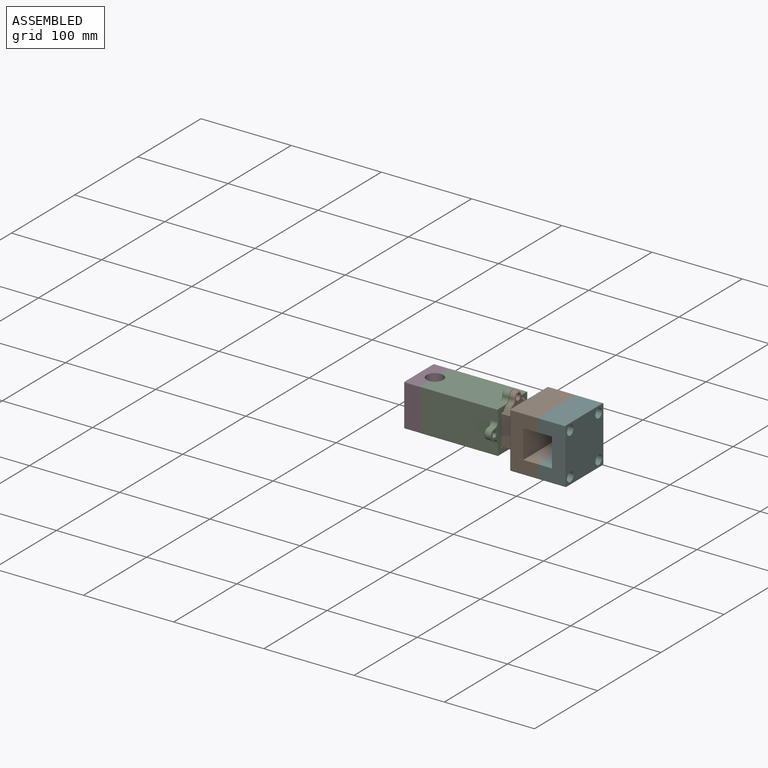
[diagram: assembled view]
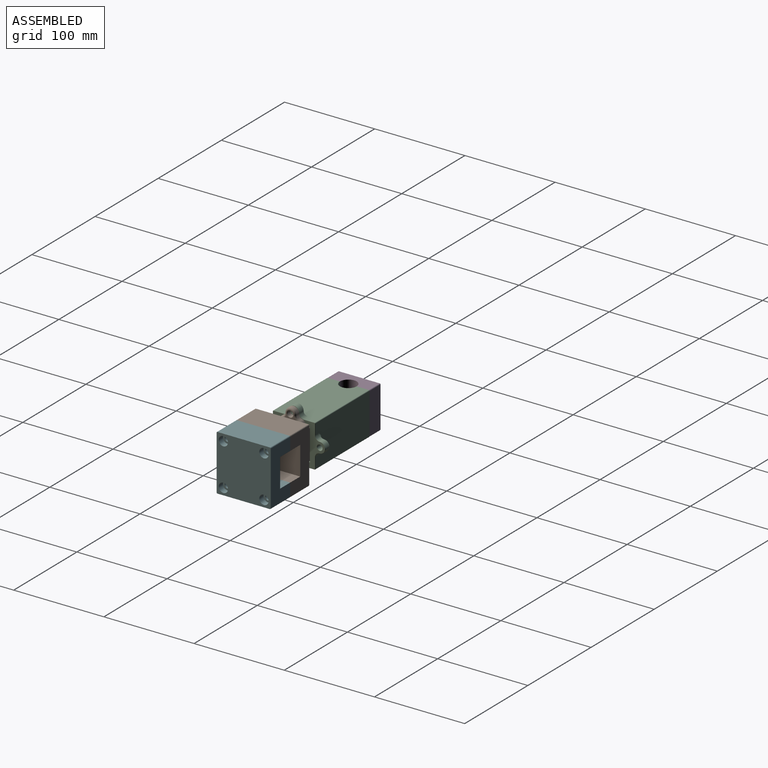
[diagram: assembled view, second angle]
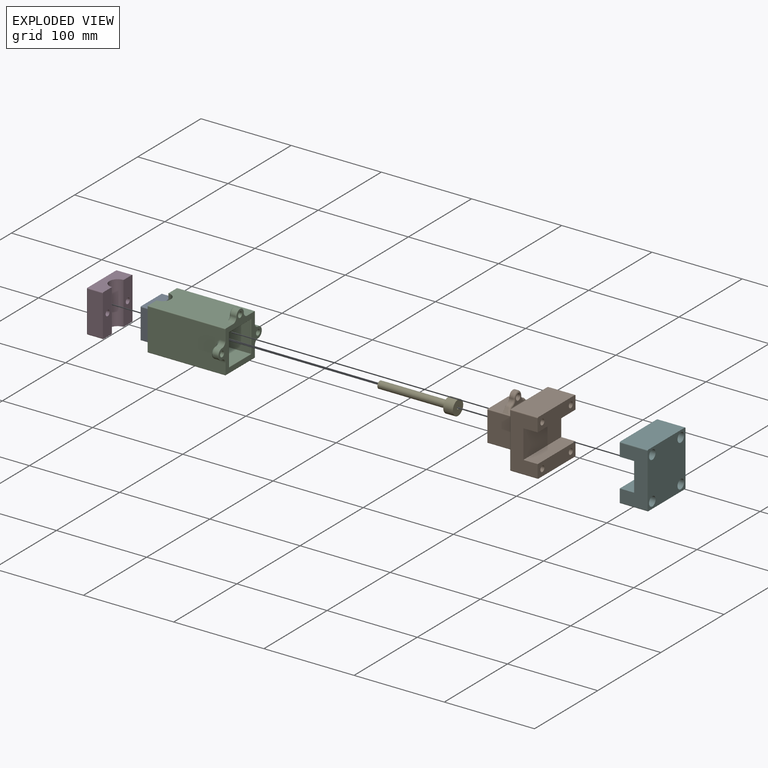
[diagram: exploded view]
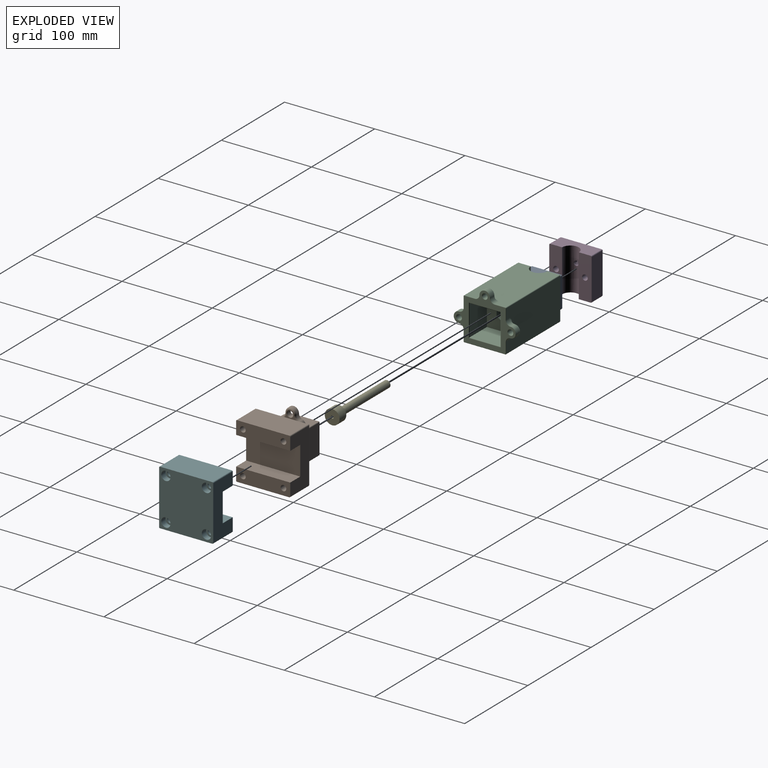
[diagram: exploded view, second angle]
ASSEMBLY  parts=6 mates=14
PART A: 23 faces, bbox 12x34x34 mm
  f0: cylinder r=2.6mm len=6mm, axis (1,0,0), area 98mm2, adj f10,f18
  f1: cylinder r=2.6mm len=6mm, axis (1,0,0), area 98mm2, adj f10,f16
  f2: cylinder r=2.6mm len=6mm, axis (1,0,0), area 98mm2, adj f10,f14
  f3: cylinder r=2.6mm len=6mm, axis (1,0,0), area 98mm2, adj f10,f12
  f4: plane 32.5x12mm, normal (0,0,1), area 390mm2, adj f9,f10,f19,f22
  f5: plane 32.5x12mm, normal (0,1,0), area 390mm2, adj f9,f10,f19,f20
  f6: plane 32.5x12mm, normal (0,0,-1), area 390mm2, adj f9,f10,f20,f21
  f7: cylinder r=7.5mm len=15mm, axis (1,0,0), area 565.5mm2, adj f9,f10
  f8: plane 32.5x12mm, normal (0,-1,0), area 390mm2, adj f9,f10,f21,f22
  f9: plane 34x34mm, normal (-1,0,0), area 730mm2, adj f4,f5,f6,f7,f8,f11,f13,f15
  f10: plane 34x34mm, normal (1,0,0), area 893.9mm2, adj f0,f1,f2,f3,f4,f5,f6,f7
  f11: cylinder r=4.45mm len=8.9mm, axis (-1,0,0), area 167.8mm2, adj f9,f12
  f12: plane 8.9x8.9mm, normal (-1,0,0), area 41mm2, adj f3,f11
  f13: cylinder r=4.45mm len=8.9mm, axis (-1,0,0), area 167.8mm2, adj f9,f14
  f14: plane 8.9x8.9mm, normal (-1,0,0), area 41mm2, adj f2,f13
  f15: cylinder r=4.45mm len=8.9mm, axis (-1,0,0), area 167.8mm2, adj f9,f16
  f16: plane 8.9x8.9mm, normal (-1,0,0), area 41mm2, adj f1,f15
  f17: cylinder r=4.45mm len=8.9mm, axis (-1,0,0), area 167.8mm2, adj f9,f18
  f18: plane 8.9x8.9mm, normal (-1,0,0), area 41mm2, adj f0,f17
  f19: cylinder r=0.75mm len=12mm, axis (1,0,0), area 14.1mm2, adj f4,f5,f9,f10
  f20: cylinder r=0.75mm len=12mm, axis (1,0,0), area 14.1mm2, adj f5,f6,f9,f10
  f21: cylinder r=0.75mm len=12mm, axis (1,0,0), area 14.1mm2, adj f6,f8,f9,f10
  f22: cylinder r=0.75mm len=12mm, axis (1,0,0), area 14.1mm2, adj f4,f8,f9,f10
PART B: 125 faces, bbox 64.9x65.9x60 mm
  f0: plane 32.5x4.57mm, normal (0,1,0), area 89.3mm2, adj f51,f78,f82,f95,f114,f124
  f1: plane 59.75x58mm, normal (-1,0,0), area 1377.6mm2, adj f16,f17,f18,f19,f20,f21,f23,f24
  f2: plane 60x15mm, normal (1,0,0), area 837.2mm2, adj f4,f6,f7,f9,f10,f12,f65,f67
  f3: plane 60x15mm, normal (1,0,0), area 837.2mm2, adj f5,f6,f7,f8,f11,f13,f64,f66
  f4: cylinder r=3.15mm len=24.38mm, axis (1,0,0), area 482.4mm2, adj f2,f29
  f5: cylinder r=3.15mm len=24.38mm, axis (1,0,0), area 482.4mm2, adj f3,f15
  f6: plane 59.75x29.88mm, normal (0,0,1), area 1281mm2, adj f2,f3,f10,f11,f14,f66,f67,f68
  f7: plane 59.75x29.88mm, normal (0,0,-1), area 1281mm2, adj f2,f3,f10,f11,f14,f64,f65,f75
  f8: plane 58x29.88mm, normal (0,1,0), area 1732.8mm2, adj f3,f64,f66,f71
  f9: plane 58x29.88mm, normal (0,-1,0), area 1732.8mm2, adj f2,f65,f67,f72
  f10: plane 60x15.88mm, normal (0,1,0), area 952.5mm2, adj f2,f6,f7,f14
  f11: plane 60x15.88mm, normal (0,-1,0), area 952.5mm2, adj f3,f6,f7,f14
  f12: cylinder r=3.15mm len=24.38mm, axis (1,0,0), area 482.4mm2, adj f2,f22
  f13: cylinder r=3.15mm len=24.38mm, axis (1,0,0), area 482.4mm2, adj f3,f36
  f14: plane 60x31.75mm, normal (1,0,0), area 1905mm2, adj f6,f7,f10,f11
  f15: plane 11.55x10mm, normal (-1,0,0), area 55.4mm2, adj f5,f16,f17,f18,f19,f20,f21
  f16: plane 6.5x5mm, normal (0,-0.5,-0.87), area 37.5mm2, adj f1,f15,f17,f21
  f17: plane 6.5x5mm, normal (0,0.5,-0.87), area 37.5mm2, adj f1,f15,f16,f18
  f18: plane 6.75x5.77mm, normal (0,1,0), area 37.6mm2, adj f1,f15,f17,f19,f49
  f19: plane 6.93x5.02mm, normal (0,0.5,0.87), area 38.1mm2, adj f1,f15,f18,f20,f49,f51,f79
  f20: plane 6.5x5mm, normal (0,-0.5,0.87), area 37.5mm2, adj f1,f15,f19,f21
  f21: plane 6.5x5.77mm, normal (0,-1,0), area 37.5mm2, adj f1,f15,f16,f20
  f22: plane 11.55x10mm, normal (-1,0,0), area 55.4mm2, adj f12,f23,f24,f25,f26,f27,f28
  f23: plane 6.5x5mm, normal (0,-0.5,-0.87), area 37.5mm2, adj f1,f22,f24,f28
  f24: plane 6.5x5mm, normal (0,0.5,-0.87), area 37.5mm2, adj f1,f22,f23,f25
  f25: plane 6.5x5.77mm, normal (0,1,0), area 37.5mm2, adj f1,f22,f24,f26
  f26: plane 6.5x5mm, normal (0,0.5,0.87), area 37.5mm2, adj f1,f22,f25,f27
  f27: plane 6.93x5.02mm, normal (0,-0.5,0.87), area 38.1mm2, adj f1,f22,f26,f28,f48,f49,f77
  f28: plane 6.75x5.77mm, normal (0,-1,0), area 37.6mm2, adj f1,f22,f23,f27,f49
  f29: plane 11.55x10mm, normal (-1,0,0), area 55.4mm2, adj f4,f30,f31,f32,f33,f34,f35
  f30: plane 6.5x5mm, normal (0,0.5,0.87), area 37.5mm2, adj f1,f29,f31,f35
  f31: plane 6.5x5mm, normal (0,-0.5,0.87), area 37.5mm2, adj f1,f29,f30,f32
  f32: plane 6.75x5.77mm, normal (0,-1,0), area 37.6mm2, adj f1,f29,f31,f33,f50
  f33: plane 6.93x5.02mm, normal (0,-0.5,-0.87), area 38.1mm2, adj f1,f29,f32,f34,f48,f50,f81
  f34: plane 6.5x5mm, normal (0,0.5,-0.87), area 37.5mm2, adj f1,f29,f33,f35
  f35: plane 6.5x5.77mm, normal (0,1,0), area 37.5mm2, adj f1,f29,f30,f34
  f36: plane 11.55x10mm, normal (-1,0,0), area 55.4mm2, adj f13,f37,f38,f39,f40,f41,f42
  f37: plane 6.5x5mm, normal (0,0.5,0.87), area 37.5mm2, adj f1,f36,f38,f42
  f38: plane 6.5x5mm, normal (0,-0.5,0.87), area 37.5mm2, adj f1,f36,f37,f39
  f39: plane 6.5x5.77mm, normal (0,-1,0), area 37.5mm2, adj f1,f36,f38,f40
  f40: plane 6.5x5mm, normal (0,-0.5,-0.87), area 37.5mm2, adj f1,f36,f39,f41
  f41: plane 6.93x5.02mm, normal (0,0.5,-0.87), area 38.1mm2, adj f1,f36,f40,f42,f50,f51,f83
  f42: plane 6.75x5.77mm, normal (0,1,0), area 37.6mm2, adj f1,f36,f37,f41,f50
  f43: plane 32.5x16.22mm, normal (0,1,0), area 513.8mm2, adj f47,f78,f82,f118,f119,f120
  f44: plane 32.5x30mm, normal (0,0,-1), area 975mm2, adj f47,f50,f80,f82
  f45: plane 32.5x30mm, normal (0,-1,0), area 975mm2, adj f47,f48,f76,f80
  f46: plane 32.5x30mm, normal (0,0,1), area 975mm2, adj f47,f49,f76,f78
  f47: plane 34x34mm, normal (-1,0,0), area 711.3mm2, adj f43,f44,f45,f46,f56,f58,f60,f62
  f48: cylinder r=4mm len=38.09mm, axis (0,0,-1), area 224.9mm2, adj f1,f27,f33,f45,f77,f81
  f49: cylinder r=4mm len=37.91mm, axis (0,-1,0), area 220.5mm2, adj f1,f18,f19,f27,f28,f46,f77,f79
  f50: cylinder r=4mm len=37.91mm, axis (0,1,0), area 220.5mm2, adj f1,f32,f33,f41,f42,f44,f81,f83
  f51: cylinder r=4mm len=38.09mm, axis (0,0,1), area 224.9mm2, adj f0,f1,f19,f41,f79,f83
  f52: plane 22.05x22.05mm, normal (-1,0,0), area 168mm2, adj f53,f54
  f53: cylinder r=11.03mm len=22.05mm, axis (-1,0,0), area 484.9mm2, adj f52,f84
  f54: cylinder r=8.25mm len=39.5mm, axis (-1,0,0), area 2047.5mm2, adj f52,f55
  f55: plane 16.5x16.5mm, normal (-1,0,0), area 213.8mm2, adj f54
  f56: cylinder r=2.1mm len=11mm, axis (-1,0,0), area 145.1mm2, adj f47,f57
  f57: plane 4.2x4.2mm, normal (-1,0,0), area 13.9mm2, adj f56
  f58: cylinder r=2.1mm len=11mm, axis (-1,0,0), area 145.1mm2, adj f47,f59
  f59: plane 4.2x4.2mm, normal (-1,0,0), area 13.9mm2, adj f58
  f60: cylinder r=2.1mm len=11mm, axis (-1,0,0), area 145.1mm2, adj f47,f61
  f61: plane 4.2x4.2mm, normal (-1,0,0), area 13.9mm2, adj f60
  f62: cylinder r=2.1mm len=11mm, axis (-1,0,0), area 145.1mm2, adj f47,f63
  f63: plane 4.2x4.2mm, normal (-1,0,0), area 13.9mm2, adj f62
  f64: cylinder r=1mm len=29.88mm, axis (-1,0,0), area 46.9mm2, adj f3,f7,f8,f73
  f65: cylinder r=1mm len=29.88mm, axis (1,0,0), area 46.9mm2, adj f2,f7,f9,f74
  f66: cylinder r=1mm len=29.88mm, axis (1,0,0), area 46.9mm2, adj f3,f6,f8,f69
  f67: cylinder r=1mm len=29.88mm, axis (-1,0,0), area 46.9mm2, adj f2,f6,f9,f70
  f68: cylinder r=1mm len=59.75mm, axis (0,1,0), area 93.9mm2, adj f1,f6,f69,f70
  f69: sphere r=1mm, area 2.1mm2, adj f66,f68,f71
  f70: sphere r=1mm, area 1.6mm2, adj f67,f68,f72
  f71: cylinder r=1mm len=58mm, axis (0,0,-1), area 91.1mm2, adj f1,f8,f69,f73
  f72: cylinder r=1mm len=58mm, axis (0,0,-1), area 91.1mm2, adj f1,f9,f70,f74
  f73: sphere r=1mm, area 1mm2, adj f64,f71,f75
  f74: sphere r=1mm, area 1.6mm2, adj f65,f72,f75
  f75: cylinder r=1mm len=59.75mm, axis (0,-1,0), area 93.9mm2, adj f1,f7,f73,f74
  f76: cylinder r=0.75mm len=30mm, axis (1,0,0), area 35.3mm2, adj f45,f46,f47,f77
  f77: bspline ~4.27x3.34mm, area 4.7mm2, adj f27,f48,f49,f76
  f78: cylinder r=0.75mm len=30mm, axis (1,0,0), area 34.1mm2, adj f0,f43,f46,f47,f79,f121,f122,f123
  f79: bspline ~4.27x3.34mm, area 4.7mm2, adj f19,f49,f51,f78
  f80: cylinder r=0.75mm len=30mm, axis (1,0,0), area 35.3mm2, adj f44,f45,f47,f81
  f81: bspline ~3.88x3.34mm, area 4.7mm2, adj f33,f48,f50,f80
  f82: cylinder r=0.75mm len=30mm, axis (1,0,0), area 34.1mm2, adj f0,f43,f44,f47,f83,f115,f116,f117
  f83: bspline ~3.88x3.34mm, area 4.7mm2, adj f41,f50,f51,f82
  f84: cone r=11.03mm half-angle=45deg, axis (-1,0,0), area 9.8mm2, adj f47,f53
  f85: cylinder r=5mm len=4.82mm, axis (-1,0,0), area 22.7mm2, adj f86,f94,f103,f104,f111
  f86: cylinder r=6mm len=12mm, axis (-1,0,0), area 66mm2, adj f85,f87,f102,f110
  f87: cylinder r=5mm len=4.82mm, axis (-1,0,0), area 22.7mm2, adj f86,f93,f100,f101,f109
  f88: plane 7.06x4.85mm, normal (0,0.63,0.78), area 29.9mm2, adj f93,f98,f107,f122
  f89: plane 7.06x4.85mm, normal (0,0.63,-0.78), area 29.9mm2, adj f94,f106,f113,f116
  f90: cylinder r=3.25mm len=6.5mm, axis (-1,0,0), area 102.1mm2, adj f96,f97
  f91: plane 16.8x10.5mm, normal (1,0,0), area 48.7mm2, adj f95,f97,f101,f102,f103
  f92: plane 30.41x16.5mm, normal (-1,0,0), area 219.1mm2, adj f96,f107,f108,f109,f110,f111,f112,f113
  f93: cylinder r=5mm len=3.61mm, axis (-1,0,0), area 11mm2, adj f87,f88,f99,f108
  f94: cylinder r=5mm len=3.61mm, axis (-1,0,0), area 11mm2, adj f85,f89,f105,f112
  f95: cylinder r=5mm len=30.59mm, axis (0,0,-1), area 207.1mm2, adj f0,f91,f98,f99,f100,f104,f105,f106
  f96: torus R=3.75mm, axis (1,0,0), area 16.9mm2, adj f90,f92
  f97: torus R=3.75mm, axis (1,0,0), area 16.9mm2, adj f90,f91
  f98: bspline ~6.89x6.2mm, area 18.4mm2, adj f88,f95,f99,f123,f124
  f99: bspline ~4.33x3.14mm, area 7.6mm2, adj f93,f95,f98,f100
  f100: bspline ~2.71x2.32mm, area 1.9mm2, adj f87,f95,f99,f101
  f101: torus R=7mm, axis (1,0,0), area 21.4mm2, adj f87,f91,f100,f102
  f102: torus R=4mm, axis (1,0,0), area 52mm2, adj f86,f91,f101,f103
  f103: torus R=7mm, axis (1,0,0), area 21.4mm2, adj f85,f91,f102,f104
  f104: bspline ~3.71x2.73mm, area 1.9mm2, adj f85,f95,f103,f105
  f105: bspline ~4.33x3.14mm, area 7.6mm2, adj f94,f95,f104,f106
  f106: bspline ~6.89x6.2mm, area 18.4mm2, adj f89,f95,f105,f114,f115
  f107: cylinder r=0.5mm len=5.17mm, axis (0,-0.78,0.63), area 4.6mm2, adj f88,f92,f108,f120,f121
  f108: torus R=4.5mm, axis (1,0,0), area 2.3mm2, adj f92,f93,f107,f109
  f109: torus R=5.5mm, axis (1,0,0), area 5.3mm2, adj f87,f92,f108,f110
  f110: torus R=5.5mm, axis (1,0,0), area 14.4mm2, adj f86,f92,f109,f111
  f111: torus R=5.5mm, axis (1,0,0), area 5.3mm2, adj f85,f92,f110,f112
  f112: torus R=4.5mm, axis (1,0,0), area 2.3mm2, adj f92,f94,f111,f113
  f113: cylinder r=0.5mm len=5.17mm, axis (0,0.78,0.63), area 4.6mm2, adj f89,f92,f112,f117,f118
  f114: bspline ~2.59x1.12mm, area 0.2mm2, adj f0,f106,f115
  f115: bspline ~2.36x0.45mm, area 0.5mm2, adj f82,f106,f114,f116
  f116: cylinder r=0.5mm len=7.06mm, axis (1,0,0), area 2.4mm2, adj f82,f89,f115,f117
  f117: bspline ~0.82x0.59mm, area 0.2mm2, adj f82,f113,f116,f118
  f118: bspline ~1.36x0.77mm, area 0.6mm2, adj f43,f113,f117,f119
  f119: cylinder r=0.5mm len=30.41mm, axis (0,0,1), area 23.9mm2, adj f43,f92,f118,f120
  f120: bspline ~1.18x0.76mm, area 0.6mm2, adj f43,f107,f119,f121
  f121: bspline ~0.82x0.59mm, area 0.2mm2, adj f78,f107,f120,f122
  f122: cylinder r=0.5mm len=7.06mm, axis (1,0,0), area 2.4mm2, adj f78,f88,f121,f123
  f123: bspline ~2.36x0.45mm, area 0.5mm2, adj f78,f98,f122,f124
  f124: bspline ~2.59x1.12mm, area 0.2mm2, adj f0,f98,f123
PART C: 113 faces, bbox 86x70x58.6 mm
  f0: plane 85.75x45.5mm, normal (0,-1,0), area 3704.1mm2, adj f2,f46,f47,f57,f58,f68,f69,f70
  f1: plane 85.75x45.5mm, normal (0,0,1), area 3569.7mm2, adj f2,f3,f15,f48,f49,f56,f57,f60
  f2: plane 47x14.25mm, normal (-1,0,0), area 584.6mm2, adj f0,f1,f14,f15,f24,f25,f26,f27
  f3: plane 47x14.25mm, normal (-1,0,0), area 584.6mm2, adj f1,f6,f7,f8,f9,f11,f12,f13
  f4: plane 5.2x5.2mm, normal (-1,0,0), area 21.2mm2, adj f5
  f5: cylinder r=2.6mm len=7.72mm, axis (-1,0,0), area 126.1mm2, adj f4,f10
  f6: plane 5.3x4.95mm, normal (0,0.5,-0.87), area 30.3mm2, adj f3,f7,f9,f10
  f7: plane 5.72x5.3mm, normal (0,1,0), area 30.3mm2, adj f3,f6,f8,f10
  f8: plane 5.3x4.95mm, normal (0,0.5,0.87), area 30.3mm2, adj f3,f7,f10,f11
  f9: plane 5.3x4.95mm, normal (0,-0.5,-0.87), area 30.3mm2, adj f3,f6,f10,f12
  f10: plane 11.43x9.9mm, normal (-1,0,0), area 63.6mm2, adj f5,f6,f7,f8,f9,f11,f12
  f11: plane 5.3x4.95mm, normal (0,-0.5,0.87), area 30.3mm2, adj f3,f8,f10,f12
  f12: plane 5.72x5.3mm, normal (0,-1,0), area 30.3mm2, adj f3,f9,f10,f11
  f13: plane 85.75x45.5mm, normal (0,1,0), area 3704.1mm2, adj f3,f44,f45,f56,f59,f76,f77,f78
  f14: plane 85.75x45.5mm, normal (0,0,-1), area 3767.2mm2, adj f2,f3,f15,f58,f59,f103
  f15: cylinder r=9.25mm len=47mm, axis (0,0,1), area 1365.8mm2, adj f1,f2,f3,f14
  f16: plane 68.5x57.5mm, normal (1,0,0), area 1167.5mm2, adj f31,f32,f33,f34,f50,f52,f54,f84
  f17: plane 34.6x27.5mm, normal (0,1,0), area 951.5mm2, adj f18,f20,f21,f32
  f18: plane 34.6x27.5mm, normal (0,0,-1), area 951.5mm2, adj f17,f19,f21,f31
  f19: plane 34.6x27.5mm, normal (0,-1,0), area 951.5mm2, adj f18,f20,f21,f33
  f20: plane 34.6x27.5mm, normal (0,0,1), area 951.5mm2, adj f17,f19,f21,f34
  f21: plane 34.6x34.6mm, normal (1,0,0), area 1051.9mm2, adj f17,f18,f19,f20,f105,f106,f107,f108
  f22: plane 5.2x5.2mm, normal (-1,0,0), area 21.2mm2, adj f23
  f23: cylinder r=2.6mm len=7.72mm, axis (-1,0,0), area 126.1mm2, adj f22,f28
  f24: plane 5.3x4.95mm, normal (0,-0.5,-0.87), area 30.3mm2, adj f2,f25,f27,f28
  f25: plane 5.3x4.95mm, normal (0,0.5,-0.87), area 30.3mm2, adj f2,f24,f26,f28
  f26: plane 5.72x5.3mm, normal (0,1,0), area 30.3mm2, adj f2,f25,f28,f29
  f27: plane 5.72x5.3mm, normal (0,-1,0), area 30.3mm2, adj f2,f24,f28,f30
  f28: plane 11.43x9.9mm, normal (-1,0,0), area 63.6mm2, adj f23,f24,f25,f26,f27,f29,f30
  f29: plane 5.3x4.95mm, normal (0,0.5,0.87), area 30.3mm2, adj f2,f26,f28,f30
  f30: plane 5.3x4.95mm, normal (0,-0.5,0.87), area 30.3mm2, adj f2,f27,f28,f29
  f31: cylinder r=0.5mm len=35.6mm, axis (0,-1,0), area 27.6mm2, adj f16,f18,f32,f33
  f32: cylinder r=0.5mm len=35.6mm, axis (0,0,-1), area 27.6mm2, adj f16,f17,f31,f34
  f33: cylinder r=0.5mm len=35.6mm, axis (0,0,1), area 27.6mm2, adj f16,f19,f31,f34
  f34: cylinder r=0.5mm len=35.6mm, axis (0,1,0), area 27.6mm2, adj f16,f20,f32,f33
  f35: cylinder r=6mm len=12mm, axis (1,0,0), area 108.4mm2, adj f48,f49,f65,f84
  f36: cylinder r=3mm len=7.5mm, axis (1,0,0), area 141.4mm2, adj f54,f55
  f37: plane 9.35x7mm, normal (-1,0,0), area 17.7mm2, adj f55,f60,f63,f64,f65,f67
  f38: cylinder r=6mm len=12mm, axis (1,0,0), area 108.4mm2, adj f46,f47,f73,f95
  f39: cylinder r=3mm len=7.5mm, axis (1,0,0), area 141.4mm2, adj f52,f53
  f40: plane 9.35x7mm, normal (-1,0,0), area 17.7mm2, adj f53,f68,f71,f72,f73,f75
  f41: cylinder r=6mm len=12mm, axis (1,0,0), area 108.4mm2, adj f44,f45,f82,f96
  f42: cylinder r=3mm len=7.5mm, axis (1,0,0), area 141.4mm2, adj f50,f51
  f43: plane 9.35x7mm, normal (-1,0,0), area 17.7mm2, adj f51,f76,f79,f80,f82,f83
  f44: cylinder r=5mm len=5.75mm, axis (1,0,0), area 45.2mm2, adj f13,f41,f80,f98
  f45: cylinder r=5mm len=5.75mm, axis (1,0,0), area 45.2mm2, adj f13,f41,f83,f94
  f46: cylinder r=5mm len=5.75mm, axis (-1,0,0), area 45.2mm2, adj f0,f38,f71,f97
  f47: cylinder r=5mm len=5.75mm, axis (-1,0,0), area 45.2mm2, adj f0,f38,f75,f93
  f48: cylinder r=5mm len=5.75mm, axis (-1,0,0), area 45.2mm2, adj f1,f35,f67,f86
  f49: cylinder r=5mm len=5.75mm, axis (-1,0,0), area 45.2mm2, adj f1,f35,f63,f85
  f50: torus R=3.25mm, axis (-1,0,0), area 7.6mm2, adj f16,f42
  f51: torus R=3.25mm, axis (1,0,0), area 7.6mm2, adj f42,f43,f77
  f52: torus R=3.25mm, axis (-1,0,0), area 7.6mm2, adj f16,f39
  f53: torus R=3.25mm, axis (1,0,0), area 7.6mm2, adj f39,f40,f70
  f54: torus R=3.25mm, axis (-1,0,0), area 7.6mm2, adj f16,f36
  f55: torus R=3.25mm, axis (1,0,0), area 7.6mm2, adj f36,f37,f62
  f56: cylinder r=0.75mm len=85.75mm, axis (-1,0,0), area 101mm2, adj f1,f3,f13,f90
  f57: cylinder r=0.75mm len=85.75mm, axis (1,0,0), area 101mm2, adj f0,f1,f2,f89
  f58: cylinder r=0.75mm len=85.75mm, axis (-1,0,0), area 101mm2, adj f0,f2,f14,f101
  f59: cylinder r=0.75mm len=85.75mm, axis (1,0,0), area 101mm2, adj f3,f13,f14,f102
  f60: cylinder r=2mm len=3.43mm, axis (0,-1,0), area 10.8mm2, adj f1,f37,f61,f62
  f61: bspline ~7.51x4mm, area 12.1mm2, adj f1,f60,f63
  f62: bspline ~3.6x2.2mm, area 7.5mm2, adj f1,f55,f60,f64
  f63: torus R=7mm, axis (1,0,0), area 15.1mm2, adj f37,f49,f61,f65
  f64: cylinder r=2mm len=3.43mm, axis (0,-1,0), area 10.8mm2, adj f1,f37,f62,f66
  f65: torus R=4mm, axis (1,0,0), area 52mm2, adj f35,f37,f63,f67
  f66: bspline ~7.51x4mm, area 12.1mm2, adj f1,f64,f67
  f67: torus R=7mm, axis (1,0,0), area 15.1mm2, adj f37,f48,f65,f66
  f68: cylinder r=2mm len=3.43mm, axis (0,0,-1), area 10.8mm2, adj f0,f40,f69,f70
  f69: bspline ~7.51x4mm, area 12.1mm2, adj f0,f68,f71
  f70: bspline ~3.6x2.2mm, area 7.5mm2, adj f0,f53,f68,f72
  f71: torus R=7mm, axis (1,0,0), area 15.1mm2, adj f40,f46,f69,f73
  f72: cylinder r=2mm len=3.43mm, axis (0,0,-1), area 10.8mm2, adj f0,f40,f70,f74
  f73: torus R=4mm, axis (1,0,0), area 52mm2, adj f38,f40,f71,f75
  f74: bspline ~7.51x4mm, area 12.1mm2, adj f0,f72,f75
  f75: torus R=7mm, axis (1,0,0), area 15.1mm2, adj f40,f47,f73,f74
  f76: cylinder r=2mm len=3.43mm, axis (0,0,1), area 10.8mm2, adj f13,f43,f77,f78
  f77: bspline ~3.6x2.2mm, area 7.5mm2, adj f13,f51,f76,f79
  f78: bspline ~7.51x4mm, area 12.1mm2, adj f13,f76,f80
  f79: cylinder r=2mm len=3.43mm, axis (0,0,1), area 10.8mm2, adj f13,f43,f77,f81
  f80: torus R=7mm, axis (1,0,0), area 15.1mm2, adj f43,f44,f78,f82
  f81: bspline ~7.51x4mm, area 12.1mm2, adj f13,f79,f83
  f82: torus R=4mm, axis (1,0,0), area 52mm2, adj f41,f43,f80,f83
  f83: torus R=7mm, axis (1,0,0), area 15.1mm2, adj f43,f45,f81,f82
  f84: torus R=5.75mm, axis (-1,0,0), area 7.3mm2, adj f16,f35,f85,f86
  f85: torus R=5.25mm, axis (-1,0,0), area 3.1mm2, adj f16,f49,f84,f87
  f86: torus R=5.25mm, axis (-1,0,0), area 3.1mm2, adj f16,f48,f84,f88
  f87: cylinder r=0.25mm len=11.75mm, axis (0,1,0), area 4.6mm2, adj f1,f16,f85,f89
  f88: cylinder r=0.25mm len=11.75mm, axis (0,1,0), area 4.6mm2, adj f1,f16,f86,f90
  f89: torus R=0.5mm, axis (-1,0,0), area 0.4mm2, adj f16,f57,f87,f91
  f90: torus R=0.5mm, axis (-1,0,0), area 0.4mm2, adj f16,f56,f88,f92
  f91: cylinder r=0.25mm len=11.75mm, axis (0,0,1), area 4.6mm2, adj f0,f16,f89,f93
  f92: cylinder r=0.25mm len=11.75mm, axis (0,0,-1), area 4.6mm2, adj f13,f16,f90,f94
  f93: torus R=5.25mm, axis (-1,0,0), area 3.1mm2, adj f16,f47,f91,f95
  f94: torus R=5.25mm, axis (-1,0,0), area 3.1mm2, adj f16,f45,f92,f96
  f95: torus R=5.75mm, axis (-1,0,0), area 7.3mm2, adj f16,f38,f93,f97
  f96: torus R=5.75mm, axis (-1,0,0), area 7.3mm2, adj f16,f41,f94,f98
  f97: torus R=5.25mm, axis (-1,0,0), area 3.1mm2, adj f16,f46,f95,f99
  f98: torus R=5.25mm, axis (-1,0,0), area 3.1mm2, adj f16,f44,f96,f100
  f99: cylinder r=0.25mm len=11.75mm, axis (0,0,1), area 4.6mm2, adj f0,f16,f97,f101
  f100: cylinder r=0.25mm len=11.75mm, axis (0,0,-1), area 4.6mm2, adj f13,f16,f98,f102
  f101: torus R=0.5mm, axis (-1,0,0), area 0.4mm2, adj f16,f58,f99,f103
  f102: torus R=0.5mm, axis (-1,0,0), area 0.4mm2, adj f16,f59,f100,f103
  f103: cylinder r=0.25mm len=45.5mm, axis (0,-1,0), area 17.9mm2, adj f14,f16,f101,f102
  f104: plane 14.95x12.95mm, normal (1,0,0), area 95mm2, adj f105,f106,f107,f108,f109,f110,f112
  f105: plane 7.3x6.48mm, normal (0,-0.5,-0.87), area 54.6mm2, adj f21,f104,f106,f110
  f106: plane 7.3x6.48mm, normal (0,0.5,-0.87), area 54.6mm2, adj f21,f104,f105,f107
  f107: plane 7.48x7.3mm, normal (0,1,0), area 54.6mm2, adj f21,f104,f106,f108
  f108: plane 7.3x6.48mm, normal (0,0.5,0.87), area 54.6mm2, adj f21,f104,f107,f109
  f109: plane 7.3x6.48mm, normal (0,-0.5,0.87), area 54.6mm2, adj f21,f104,f108,f110
  f110: plane 7.48x7.3mm, normal (0,-1,0), area 54.6mm2, adj f21,f104,f105,f109
  f111: plane 8x8mm, normal (1,0,0), area 50.3mm2, adj f112
  f112: cylinder r=4mm len=20.8mm, axis (1,0,0), area 522.8mm2, adj f104,f111
PART D: 34 faces, bbox 18x47x47 mm
  f0: cylinder r=2.7mm len=5.4mm, axis (-1,0,0), area 57.7mm2, adj f13,f33
  f1: plane 47x14.25mm, normal (1,0,0), area 639.1mm2, adj f7,f10,f11,f12,f13,f16,f22
  f2: cylinder r=5.25mm len=10.5mm, axis (-1,0,0), area 214.4mm2, adj f3,f8
  f3: plane 10.5x10.5mm, normal (-1,0,0), area 56.4mm2, adj f2,f4
  f4: cylinder r=3.1mm len=11.5mm, axis (-1,0,0), area 224mm2, adj f3,f14
  f5: cylinder r=5.25mm len=10.5mm, axis (-1,0,0), area 214.4mm2, adj f6,f8
  f6: plane 10.5x10.5mm, normal (-1,0,0), area 56.4mm2, adj f5,f7
  f7: cylinder r=3.1mm len=11.5mm, axis (-1,0,0), area 224mm2, adj f1,f6
  f8: plane 45x45mm, normal (-1,0,0), area 1766.9mm2, adj f2,f5,f17,f20,f23,f26,f27,f28
  f9: plane 45x17mm, normal (0,1,0), area 765mm2, adj f14,f15,f20,f21
  f10: plane 45x17mm, normal (0,-1,0), area 765mm2, adj f1,f16,f22,f23
  f11: plane 45x17mm, normal (0,0,-1), area 630.6mm2, adj f1,f13,f14,f15,f16,f17
  f12: plane 45x17mm, normal (0,0,1), area 630.6mm2, adj f1,f13,f14,f21,f22,f26
  f13: cylinder r=9.25mm len=47mm, axis (0,0,1), area 1342.7mm2, adj f0,f1,f11,f12,f14
  f14: plane 47x14.25mm, normal (1,0,0), area 639.1mm2, adj f4,f9,f11,f12,f13,f15,f21
  f15: cylinder r=1mm len=17mm, axis (1,0,0), area 26.7mm2, adj f9,f11,f14,f18
  f16: cylinder r=1mm len=17mm, axis (-1,0,0), area 26.7mm2, adj f1,f10,f11,f19
  f17: cylinder r=1mm len=45mm, axis (0,-1,0), area 70.7mm2, adj f8,f11,f18,f19
  f18: sphere r=1mm, area 1.6mm2, adj f15,f17,f20
  f19: sphere r=1mm, area 1.6mm2, adj f16,f17,f23
  f20: cylinder r=1mm len=45mm, axis (0,0,1), area 70.7mm2, adj f8,f9,f18,f24
  f21: cylinder r=1mm len=17mm, axis (-1,0,0), area 26.7mm2, adj f9,f12,f14,f24
  f22: cylinder r=1mm len=17mm, axis (1,0,0), area 26.7mm2, adj f1,f10,f12,f25
  f23: cylinder r=1mm len=45mm, axis (0,0,-1), area 70.7mm2, adj f8,f10,f19,f25
  f24: sphere r=1mm, area 1.6mm2, adj f20,f21,f26
  f25: sphere r=1mm, area 1.6mm2, adj f22,f23,f26
  f26: cylinder r=1mm len=45mm, axis (0,1,0), area 70.7mm2, adj f8,f12,f24,f25
  f27: plane 5.55x4.95mm, normal (0,-0.5,-0.87), area 31.7mm2, adj f8,f28,f32,f33
  f28: plane 5.72x5.55mm, normal (0,-1,0), area 31.7mm2, adj f8,f27,f29,f33
  f29: plane 5.55x4.95mm, normal (0,-0.5,0.87), area 31.7mm2, adj f8,f28,f30,f33
  f30: plane 5.55x4.95mm, normal (0,0.5,0.87), area 31.7mm2, adj f8,f29,f31,f33
  f31: plane 5.72x5.55mm, normal (0,1,0), area 31.7mm2, adj f8,f30,f32,f33
  f32: plane 5.55x4.95mm, normal (0,0.5,-0.87), area 31.7mm2, adj f8,f27,f31,f33
  f33: plane 11.43x9.9mm, normal (-1,0,0), area 62mm2, adj f0,f27,f28,f29,f30,f31,f32
PART E: 6 faces, bbox 86.7x16.4x16.4 mm
  f0: cylinder r=3.95mm len=76.01mm, axis (-1,0,0), area 1886.5mm2, adj f2,f4
  f1: cylinder r=8.2mm len=16.4mm, axis (1,0,0), area 551.3mm2, adj f2,f3
  f2: plane 16.4x16.4mm, normal (-1,0,0), area 162.2mm2, adj f0,f1
  f3: plane 16.4x16.4mm, normal (1,0,0), area 203.4mm2, adj f1,f5
  f4: plane 7.9x7.9mm, normal (-1,0,0), area 41.2mm2, adj f0,f5
  f5: cylinder r=1.58mm len=86.71mm, axis (-1,0,0), area 858.8mm2, adj f3,f4
PART F: 26 faces, bbox 30.9x61.8x60 mm
  f0: plane 60x15mm, normal (-1,0,0), area 835.2mm2, adj f3,f5,f7,f8,f19,f21,f22,f24
  f1: plane 60x15mm, normal (-1,0,0), area 835.2mm2, adj f3,f5,f6,f9,f18,f20,f23,f25
  f2: plane 61.75x60mm, normal (1,0,0), area 3370.9mm2, adj f3,f5,f8,f9,f11,f13,f15,f17
  f3: plane 59.75x30.88mm, normal (0,0,1), area 1340.8mm2, adj f0,f1,f2,f4,f6,f7,f24,f25
  f4: plane 60x31.75mm, normal (-1,0,0), area 1905mm2, adj f3,f5,f6,f7
  f5: plane 59.75x30.88mm, normal (0,0,-1), area 1340.7mm2, adj f0,f1,f2,f4,f6,f7,f22,f23
  f6: plane 60x15.88mm, normal (0,-1,0), area 952.5mm2, adj f1,f3,f4,f5
  f7: plane 60x15.88mm, normal (0,1,0), area 952.5mm2, adj f0,f3,f4,f5
  f8: plane 58x30.88mm, normal (0,-1,0), area 1790.7mm2, adj f0,f2,f22,f24
  f9: plane 58x30.88mm, normal (0,1,0), area 1790.7mm2, adj f1,f2,f23,f25
  f10: plane 10.3x10.3mm, normal (1,0,0), area 51.2mm2, adj f11,f21
  f11: cylinder r=5.15mm len=10.3mm, axis (1,0,0), area 216.8mm2, adj f2,f10
  f12: plane 10.3x10.3mm, normal (1,0,0), area 51.2mm2, adj f13,f20
  f13: cylinder r=5.15mm len=10.3mm, axis (1,0,0), area 216.8mm2, adj f2,f12
  f14: plane 10.3x10.3mm, normal (1,0,0), area 51.2mm2, adj f15,f19
  f15: cylinder r=5.15mm len=10.3mm, axis (1,0,0), area 216.8mm2, adj f2,f14
  f16: plane 10.3x10.3mm, normal (1,0,0), area 51.2mm2, adj f17,f18
  f17: cylinder r=5.15mm len=10.3mm, axis (1,0,0), area 216.8mm2, adj f2,f16
  f18: cylinder r=3.2mm len=24.18mm, axis (1,0,0), area 486.1mm2, adj f1,f16
  f19: cylinder r=3.2mm len=24.18mm, axis (1,0,0), area 486.1mm2, adj f0,f14
  f20: cylinder r=3.2mm len=24.18mm, axis (1,0,0), area 486.1mm2, adj f1,f12
  f21: cylinder r=3.2mm len=24.18mm, axis (1,0,0), area 486.1mm2, adj f0,f10
  f22: cylinder r=1mm len=30.88mm, axis (1,0,0), area 48.5mm2, adj f0,f2,f5,f8
  f23: cylinder r=1mm len=30.88mm, axis (-1,0,0), area 48.5mm2, adj f1,f2,f5,f9
  f24: cylinder r=1mm len=30.88mm, axis (-1,0,0), area 48.5mm2, adj f0,f2,f3,f8
  f25: cylinder r=1mm len=30.88mm, axis (1,0,0), area 48.5mm2, adj f1,f2,f3,f9
PLACE A rot(axis=(1,0,0),90deg) t=(221.88,189.17,-135.59)mm
PLACE B rot(axis=(1,0,0),90deg) t=(198.56,195.51,-139.88)mm fixed
PLACE C t=(220.01,198.82,-130.39)mm
PLACE D t=(220.01,198.82,-130.39)mm
PLACE E t=(105.29,165.51,-139.88)mm
PLACE F rot(axis=(1,0,0),90deg) t=(198.56,195.51,-139.88)mm
MATE planar C.f3 <-> D.f14  axis (-1,0,0) through (63.68,181.51,-116.38)mm
MATE cylindrical A.f7 <-> C.f112  axis (-1,0,0) through (121.69,165.51,-139.88)mm
MATE cylindrical D.f2 <-> C.f5  axis (-1,0,0) through (52.18,181.51,-139.88)mm
MATE planar B.f2 <-> F.f0  axis (1,0,0) through (198.56,165.51,-163.25)mm
MATE planar C.f112 <-> E.f0  axis (1,0,0) through (93.58,165.51,-139.88)mm
MATE cylindrical F.f11 <-> B.f4  axis (-1,0,0) through (198.56,188.01,-163.25)mm
MATE cylindrical A.f7 <-> B.f53  axis (-1,0,0) through (121.69,165.51,-139.88)mm
MATE cylindrical F.f13 <-> B.f5  axis (-1,0,0) through (198.56,143.01,-116.5)mm
MATE slider B.f53 <-> E.f1  axis (-1,0,0) through (140.79,165.51,-139.88)mm
MATE cylindrical B.f86 <-> C.f35  axis (1,0,0) through (150.49,165.51,-111.38)mm
MATE planar C.f1 <-> D.f12  axis (0,0,1) through (105.9,165.51,-116.38)mm
MATE cylindrical F.f15 <-> B.f12  axis (-1,0,0) through (198.56,143.01,-163.25)mm
MATE cylindrical C.f23 <-> D.f5  axis (-1,0,0) through (68.98,149.51,-139.88)mm
MATE planar A.f10 <-> B.f47  axis (1,0,0) through (133.69,165.56,-139.88)mm
